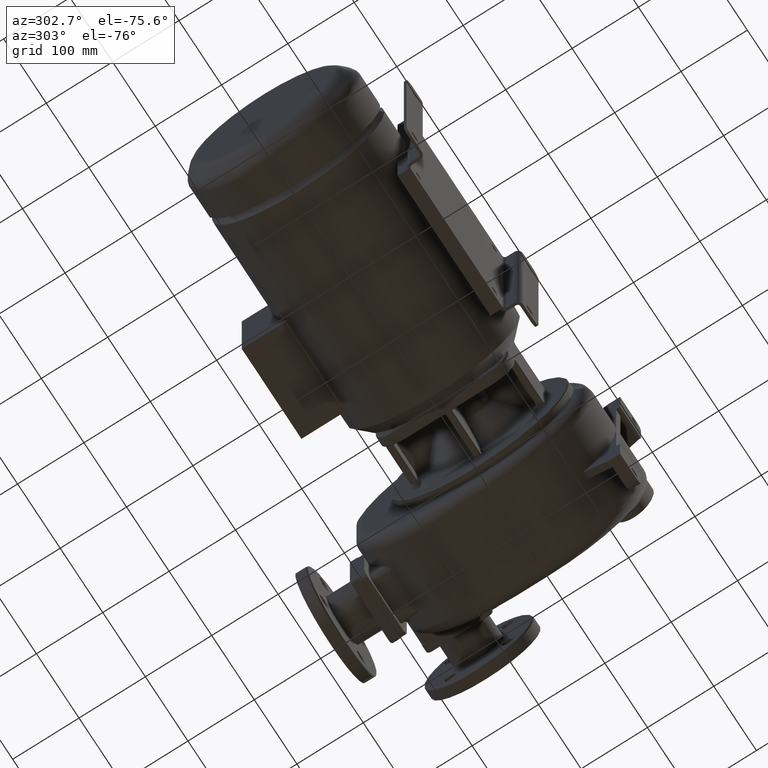
[diagram: clean part render]
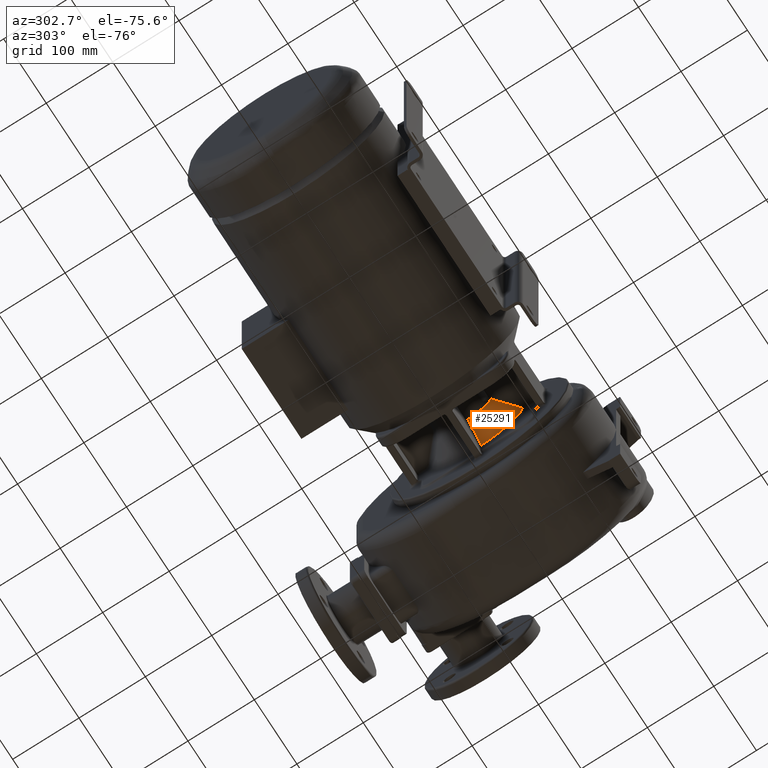
[diagram: same view with one face highlighted and labeled with its STEP entity id]
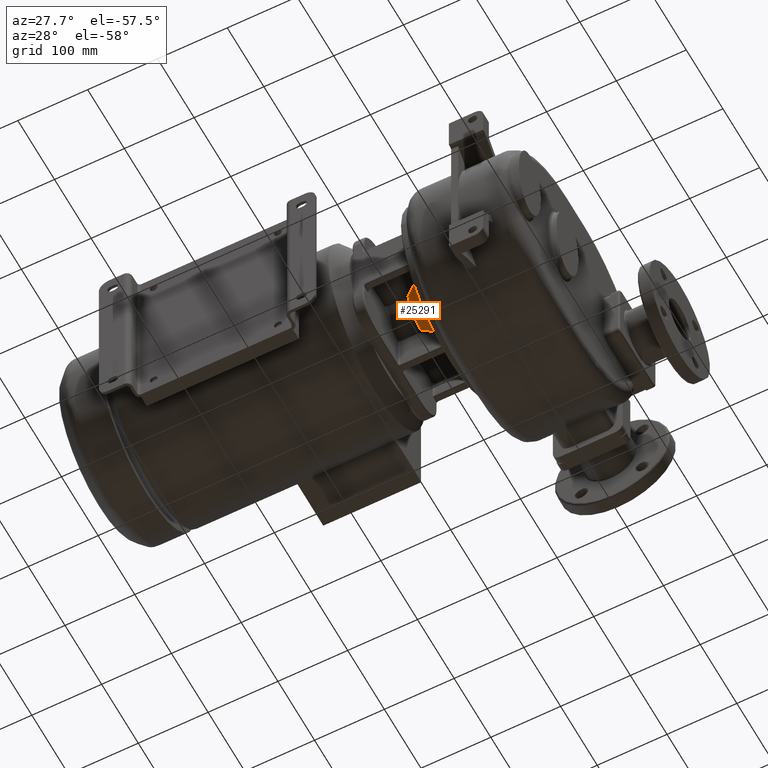
[diagram: same view with one face highlighted and labeled with its STEP entity id]
A machine part, auxiliary view. The second image highlights one B-rep face of the part: STEP entity #25291.
A second angle (auxiliary view) of the same face is appended — the face is thin or edge-on in the first view.
In plain terms, the highlighted conical surface has half-angle 40 deg.
Its self-contained STEP definition (entity closure, byte-faithful):
#9459=CARTESIAN_POINT('',(4.981423008770E2,-6.988102815378E1,
-1.259244266853E1));
#9492=CARTESIAN_POINT('',(4.981423003383E2,-7.749196573001E0,
-7.058241814947E1));
#9493=CARTESIAN_POINT('',(4.960224571313E2,-7.743110747562E0,
-6.879363848255E1));
#9494=CARTESIAN_POINT('',(4.919850439894E2,-7.730625335986E0,
-6.538532404899E1));
#9495=CARTESIAN_POINT('',(4.865828679896E2,-7.711391531408E0,
-6.082086044619E1));
#9496=CARTESIAN_POINT('',(4.816914665778E2,-7.691454248010E0,
-5.668395146023E1));
#9497=CARTESIAN_POINT('',(4.772662182215E2,-7.670888364994E0,
-5.293728647491E1));
#9498=CARTESIAN_POINT('',(4.732360853865E2,-7.649618752964E0,
-4.952114370813E1));
#9499=CARTESIAN_POINT('',(4.696065024295E2,-7.627959423179E0,
-4.644059632627E1));
#9500=CARTESIAN_POINT('',(4.674274055237E2,-7.613337060891E0,
-4.458859646080E1));
#9501=CARTESIAN_POINT('',(4.664000764294E2,-7.606060653074E0,
-4.371487992465E1));
#9503=CARTESIAN_POINT('',(4.664000769384E2,0.E0,0.E0));
#9504=DIRECTION('',(-1.E0,0.E0,0.E0));
#9505=DIRECTION('',(0.E0,-1.714171435947E-1,-9.851985398293E-1));
#9506=AXIS2_PLACEMENT_3D('',#9503,#9504,#9505);
#9508=CARTESIAN_POINT('',(4.664000768784E2,-4.261570116506E1,
-1.235899883491E1));
#9509=CARTESIAN_POINT('',(4.664341461254E2,-4.264530414053E1,
-1.235955895319E1));
#9510=CARTESIAN_POINT('',(4.665019863002E2,-4.270426151056E1,
-1.236062256701E1));
#9511=CARTESIAN_POINT('',(4.666028436786E2,-4.279194454333E1,
-1.236205301706E1));
#9512=CARTESIAN_POINT('',(4.666694962448E2,-4.284991075258E1,
-1.236290050940E1));
#9513=CARTESIAN_POINT('',(4.667026748738E2,-4.287877025959E1,
-1.236329871118E1));
#9515=CARTESIAN_POINT('',(4.667026748738E2,-4.287877025959E1,
-1.236329871118E1));
#9516=CARTESIAN_POINT('',(4.674329244603E2,-4.351408706306E1,
-1.237161373148E1));
#9517=CARTESIAN_POINT('',(4.689643695669E2,-4.484463707010E1,
-1.238839280630E1));
#9518=CARTESIAN_POINT('',(4.714476780688E2,-4.699634229172E1,
-1.241346291381E1));
#9519=CARTESIAN_POINT('',(4.742002119313E2,-4.937509843969E1,
-1.243896548113E1));
#9520=CARTESIAN_POINT('',(4.772478386863E2,-5.200218356747E1,
-1.246473763235E1));
#9521=CARTESIAN_POINT('',(4.806585608251E2,-5.493505856260E1,
-1.249092133105E1));
#9522=CARTESIAN_POINT('',(4.844700718066E2,-5.820477093843E1,
-1.251729615677E1));
#9523=CARTESIAN_POINT('',(4.886253087674E2,-6.176134102372E1,
-1.254308219764E1));
#9524=CARTESIAN_POINT('',(4.931169622807E2,-6.559799546143E1,
-1.256803941926E1));
#9525=CARTESIAN_POINT('',(4.964202995010E2,-6.841427307671E1,
-1.258440904515E1));
#9526=CARTESIAN_POINT('',(4.981423008770E2,-6.988102815378E1,
-1.259244266853E1));
#9528=CARTESIAN_POINT('',(4.981423008775E2,0.E0,0.E0));
#9529=DIRECTION('',(-1.E0,0.E0,0.E0));
#9530=DIRECTION('',(0.E0,-1.091335711136E-1,-9.940270940251E-1));
#9531=AXIS2_PLACEMENT_3D('',#9528,#9529,#9530);
#9543=CARTESIAN_POINT('',(4.664000764294E2,-7.606060653074E0,
-4.371487992465E1));
#11117=VERTEX_POINT('',#9459);
#11119=VERTEX_POINT('',#9515);
#11121=VERTEX_POINT('',#9508);
#11468=VERTEX_POINT('',#9543);
#11470=VERTEX_POINT('',#9492);
#25275=CARTESIAN_POINT('',(4.822711889080E2,0.E0,0.E0));
#25276=DIRECTION('',(1.E0,0.E0,0.E0));
#25277=DIRECTION('',(0.E0,-1.E0,0.E0));
#25278=AXIS2_PLACEMENT_3D('',#25275,#25276,#25277);
#25279=CONICAL_SURFACE('',#25278,5.768908865506E1,4.E1);
#25281=ORIENTED_EDGE('',*,*,#25280,.T.);
#25283=ORIENTED_EDGE('',*,*,#25282,.T.);
#25285=ORIENTED_EDGE('',*,*,#25284,.T.);
#25287=ORIENTED_EDGE('',*,*,#25286,.T.);
#25288=ORIENTED_EDGE('',*,*,#25265,.F.);
#25289=EDGE_LOOP('',(#25281,#25283,#25285,#25287,#25288));
#25290=FACE_OUTER_BOUND('',#25289,.F.);
#25291=ADVANCED_FACE('',(#25290),#25279,.T.);
#9502=B_SPLINE_CURVE_WITH_KNOTS('',3,(#9492,#9493,#9494,#9495,#9496,#9497,#9498,
#9499,#9500,#9501),.UNSPECIFIED.,.F.,.F.,(4,1,1,1,1,1,1,4),(0.E0,
1.428571428571E-1,2.857142857143E-1,4.285714285714E-1,5.714285714286E-1,
7.142857142857E-1,8.571428571429E-1,1.E0),.UNSPECIFIED.);
#9507=CIRCLE('',#9506,4.437164445505E1);
#9514=B_SPLINE_CURVE_WITH_KNOTS('',3,(#9508,#9509,#9510,#9511,#9512,#9513),
.UNSPECIFIED.,.F.,.F.,(4,1,1,4),(0.E0,3.333333333333E-1,6.666666666667E-1,1.E0),
.UNSPECIFIED.);
#9527=B_SPLINE_CURVE_WITH_KNOTS('',3,(#9515,#9516,#9517,#9518,#9519,#9520,#9521,
#9522,#9523,#9524,#9525,#9526),.UNSPECIFIED.,.F.,.F.,(4,1,1,1,1,1,1,1,1,4),
(0.E0,1.111111111111E-1,2.222222222222E-1,3.333333333333E-1,4.444444444444E-1,
5.555555555556E-1,6.666666666667E-1,7.777777777778E-1,8.888888888889E-1,1.E0),
.UNSPECIFIED.);
#9532=CIRCLE('',#9531,7.100653285507E1);
#25265=EDGE_CURVE('',#11470,#11117,#9532,.T.);
#25280=EDGE_CURVE('',#11470,#11468,#9502,.T.);
#25282=EDGE_CURVE('',#11468,#11121,#9507,.T.);
#25284=EDGE_CURVE('',#11121,#11119,#9514,.T.);
#25286=EDGE_CURVE('',#11119,#11117,#9527,.T.);